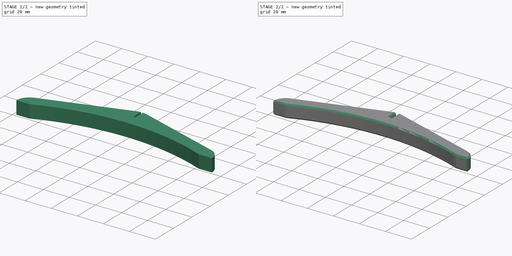
[diagram: build sequence overview — one tinted view per stage of 2, left to right]
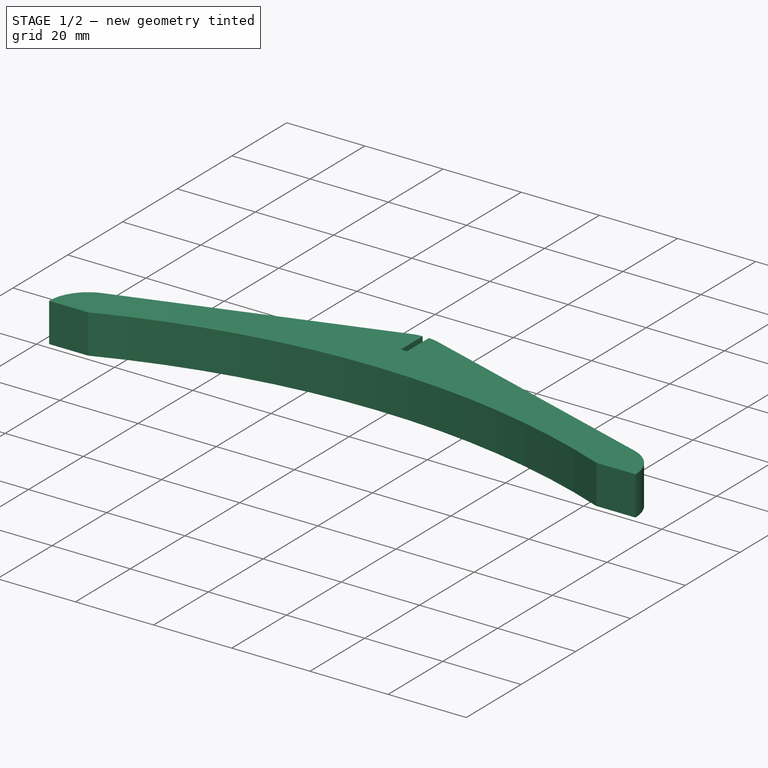
[diagram: stage 1 of 2 — iso view after this stage's code; geometry added in this stage tinted green]
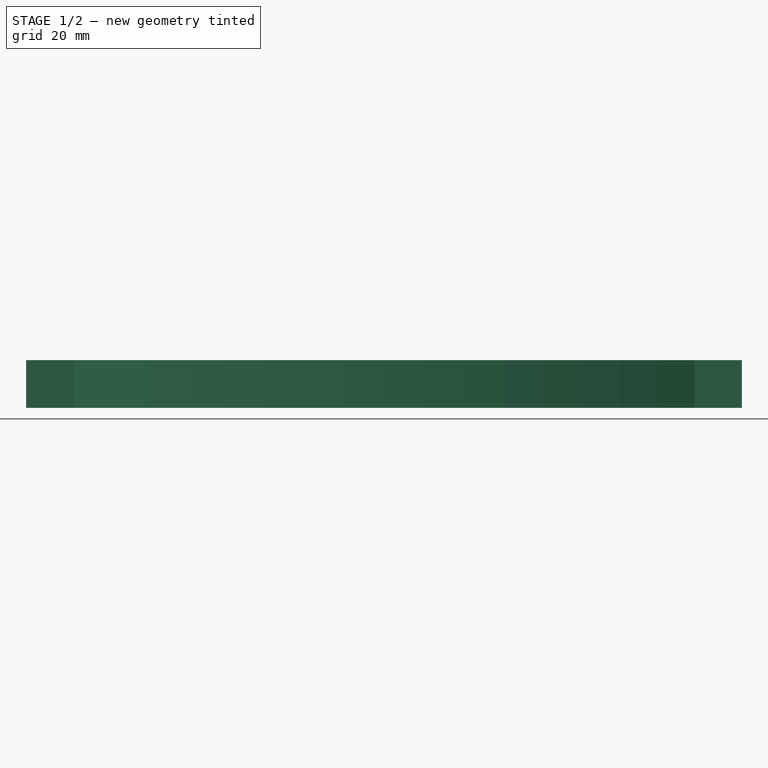
[diagram: stage 1 of 2 — front view after this stage's code; geometry added in this stage tinted green]
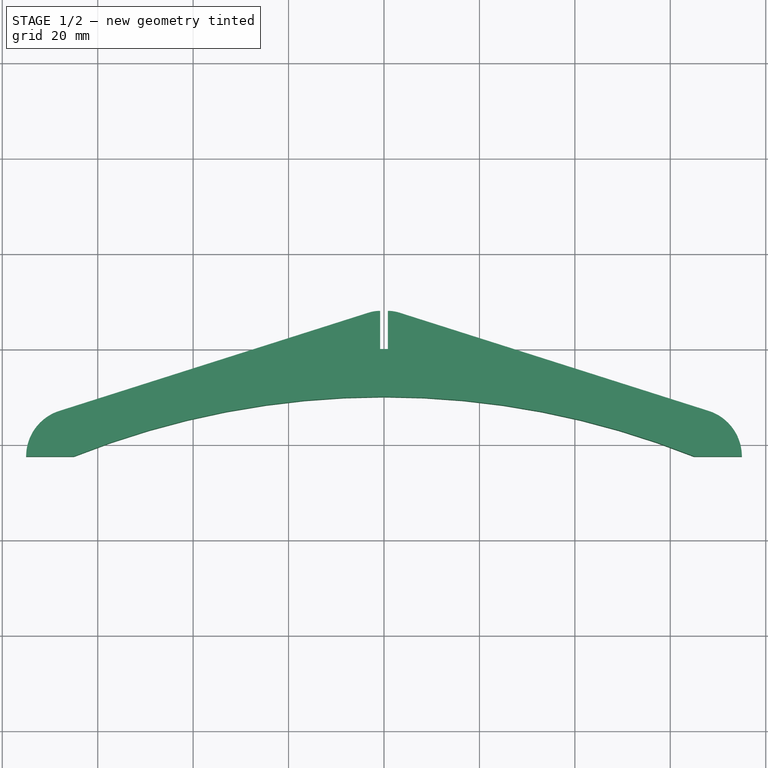
[diagram: stage 1 of 2 — top view after this stage's code; geometry added in this stage tinted green]
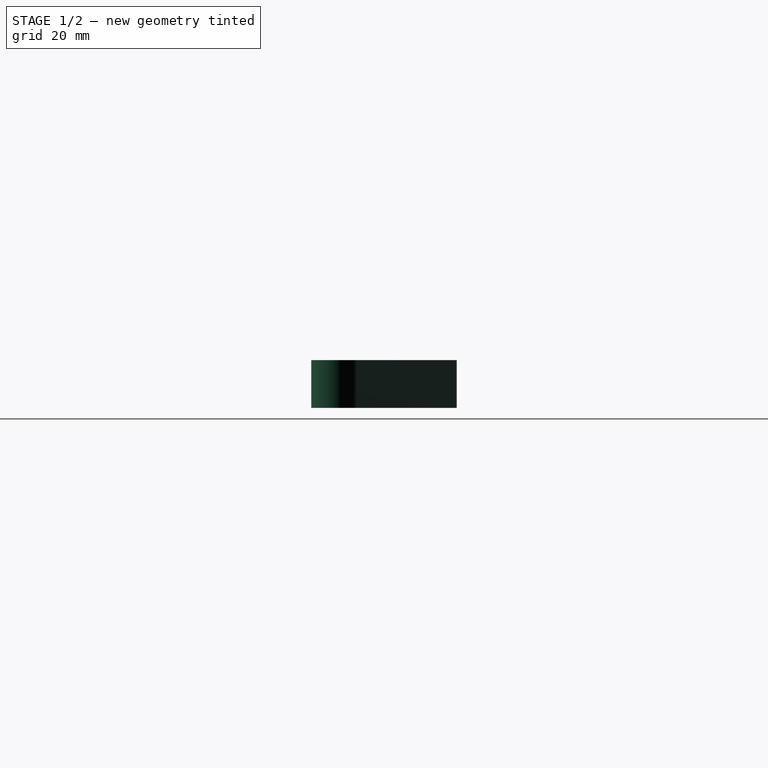
[diagram: stage 1 of 2 — right view after this stage's code; geometry added in this stage tinted green]
FCSTD DOCUMENT  (FreeCAD 0.21R33668 +26 (Git))
Label: Stand
License: All rights reserved
LicenseURL: http://en.wikipedia.org/wiki/All_rights_reserved
objects: Sketcher::SketchObject×1, PartDesign::Pad×1, PartDesign::Chamfer×1, PartDesign::Body×1
note: 6 computed .brp shape members not serialized (recipe doc carries the construction recipe); baked Part::Feature solids carry a one-line shape summary decoded from their .brp

FEATURE [Sketcher::SketchObject] Sketch
  FullyConstrained = true
  MapMode = 5
  Support = -> [XY_Plane]
  sketch-geometry (14):
    g0: LineSegment StartX=-0.8 StartY=8 StartZ=0 EndX=-0.8 EndY=0 EndZ=0
    g1: LineSegment StartX=0.8 StartY=8 StartZ=0 EndX=0.8 EndY=0 EndZ=0
    g2: LineSegment StartX=-0.8 StartY=8 StartZ=0 EndX=0.8 EndY=8 EndZ=0
    g3: ArcOfCircle CenterX=-0.8 CenterY=0 CenterZ=0 NormalX=0 NormalY=0 NormalZ=1 AngleXU=0 Radius=8 StartAngle=1.5708 EndAngle=1.87848
    g4: ArcOfCircle CenterX=0.8 CenterY=0 CenterZ=0 NormalX=0 NormalY=0 NormalZ=1 AngleXU=0 Radius=8 StartAngle=1.26311 EndAngle=1.5708
    g5: LineSegment StartX=-3.22284 StartY=7.62429 StartZ=0 EndX=-68.0286 EndY=-12.9696 EndZ=0
    g6: LineSegment StartX=3.22284 StartY=7.62429 StartZ=0 EndX=68.0286 EndY=-12.9696 EndZ=0
    g7: ArcOfCircle CenterX=-65 CenterY=-22.5 CenterZ=0 NormalX=0 NormalY=0 NormalZ=1 AngleXU=0 Radius=10 StartAngle=1.87848 EndAngle=3.14159
    g8: ArcOfCircle CenterX=65 CenterY=-22.5 CenterZ=0 NormalX=0 NormalY=0 NormalZ=1 AngleXU=0 Radius=10 StartAngle=1e-16 EndAngle=1.26311
    g9: LineSegment StartX=-0.8 StartY=0 StartZ=0 EndX=0.8 EndY=0 EndZ=0
    g10: LineSegment StartX=-75 StartY=-22.5 StartZ=0 EndX=-65 EndY=-22.5 EndZ=0
    g11: LineSegment StartX=75 StartY=-22.5 StartZ=0 EndX=65 EndY=-22.5 EndZ=0
    g12: ArcOfCircle CenterX=1.66e-14 CenterY=-185.25 CenterZ=0 NormalX=0 NormalY=0 NormalZ=1 AngleXU=0 Radius=175.25 StartAngle=1.19082 EndAngle=1.95077
    g13: LineSegment StartX=0 StartY=0 StartZ=0 EndX=0 EndY=-10 EndZ=0
  constraints (36):
    c: PointOnObject(g0,g-1)
    c: Vertical(g0)
    c: PointOnObject(g1,g-1)
    c: Vertical(g1)
    c: DistanceY(g0,g0) = 8
    c: Coincident(g2,g0)
    c: Coincident(g2,g1)
    c: DistanceX(g2,g2) = 1.6
    c: Symmetric(g0,g1,g-2)
    c: Coincident(g3,g0)
    c: Coincident(g3,g0)
    c: Coincident(g4,g1)
    c: Coincident(g4,g1)
    c: Tangent(g6,g4) = 1.5708
    c: Tangent(g5,g3) = -1.5708
    c: Equal(g5,g6)
    c: Tangent(g8,g6) = 1.5708
    c: Tangent(g7,g5) = -1.5708
    c: Symmetric(g7,g8,g-2)
    c: Coincident(g9,g0)
    c: Coincident(g9,g1)
    c: Coincident(g10,g7)
    c: Horizontal(g10)
    c: Coincident(g11,g8)
    c: Horizontal(g11)
    c: DistanceX(g10,g10) = 10
    c: Coincident(g12,g10)
    c: Coincident(g12,g11)
    c: Coincident(g13,g-1)
    c: Vertical(g13)
    c: Coincident(g8,g11)
    c: Coincident(g7,g10)
    c: PointOnObject(g13,g12)
    c: DistanceY(g13,g13) = 10
    c: DistanceX(g7,g8) = 150
    c: DistanceY(g7,g-1) = 22.5
FEATURE [PartDesign::Pad] Pad
  Direction = (0,0,1)
  Length = 10
  Length2 = 10
  Profile = -> Sketch
  ReferenceAxis = -> Sketch [N_Axis]
  Type = 0
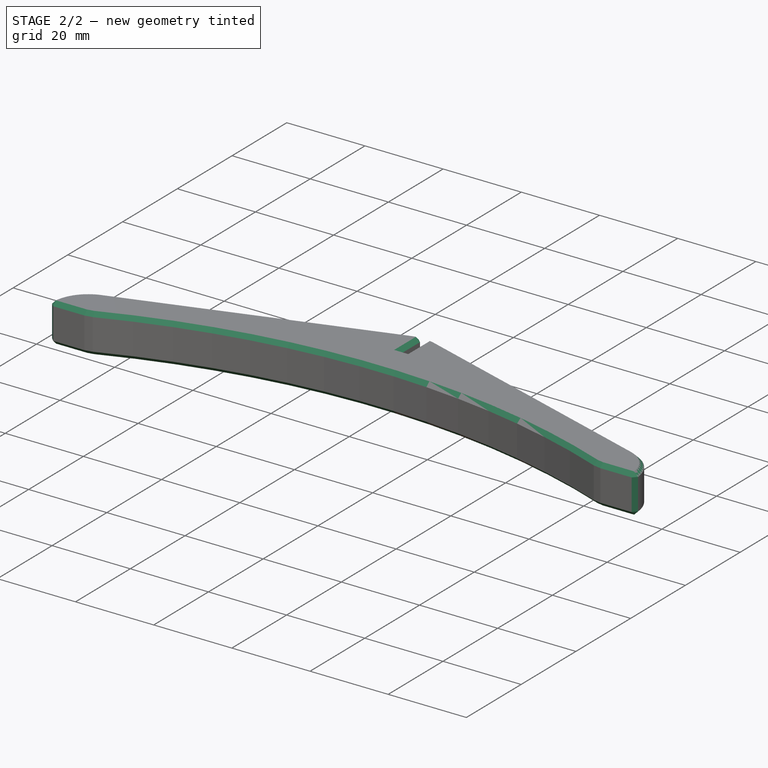
[diagram: stage 2 of 2 — iso view after this stage's code; geometry added in this stage tinted green]
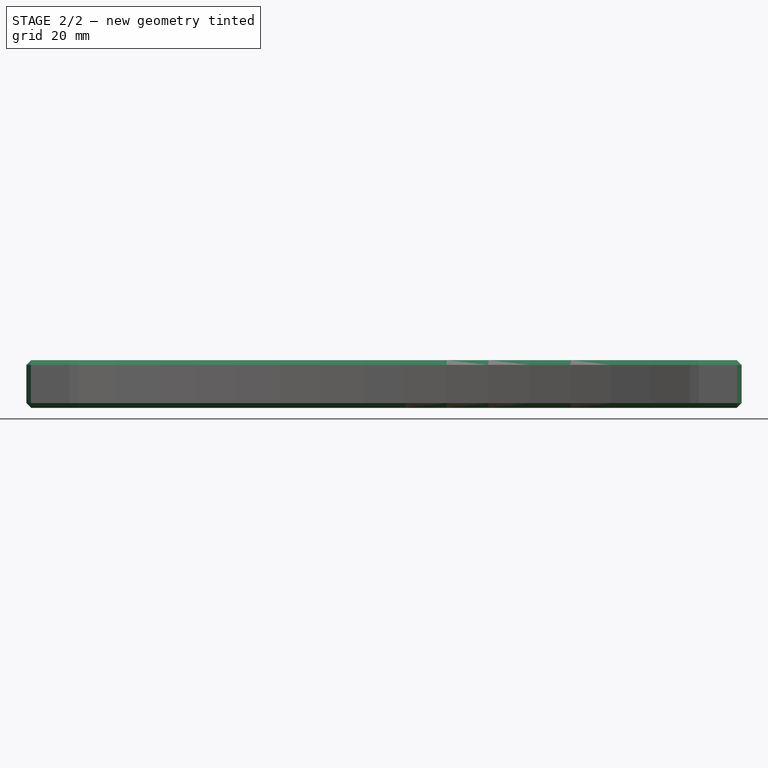
[diagram: stage 2 of 2 — front view after this stage's code; geometry added in this stage tinted green]
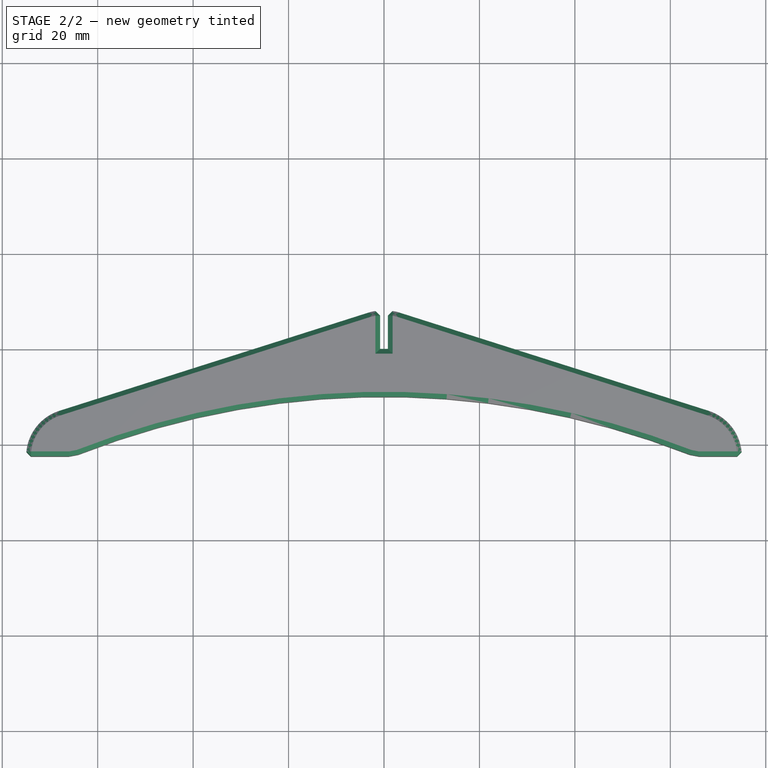
[diagram: stage 2 of 2 — top view after this stage's code; geometry added in this stage tinted green]
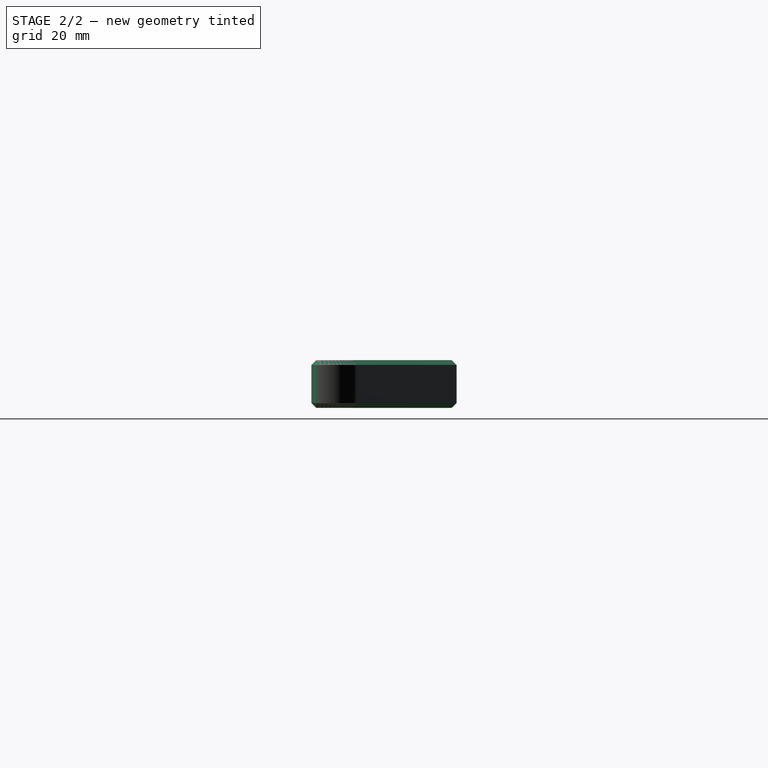
[diagram: stage 2 of 2 — right view after this stage's code; geometry added in this stage tinted green]
FEATURE [PartDesign::Chamfer] Chamfer
  Angle = 45
  Base = -> Pad [Face14,Face13,Edge1,Edge11,Edge29,Edge26,Edge23,Edge20]
  BaseFeature = -> Pad
  ChamferType = 0
  FlipDirection = false
  Size = 1
  Size2 = 1
  SupportTransform = false
  UseAllEdges = false
FEATURE [PartDesign::Body] Body
  Group = -> [Sketch,Pad,Chamfer]
  Origin = -> Origin
  Tip = -> Chamfer
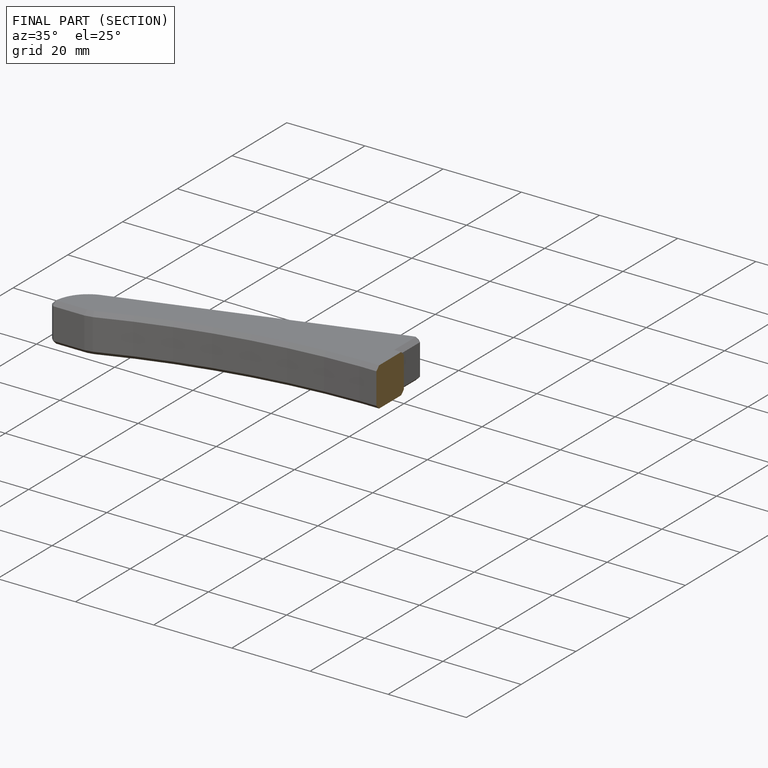
[diagram: finished part — half-section view (interior)]
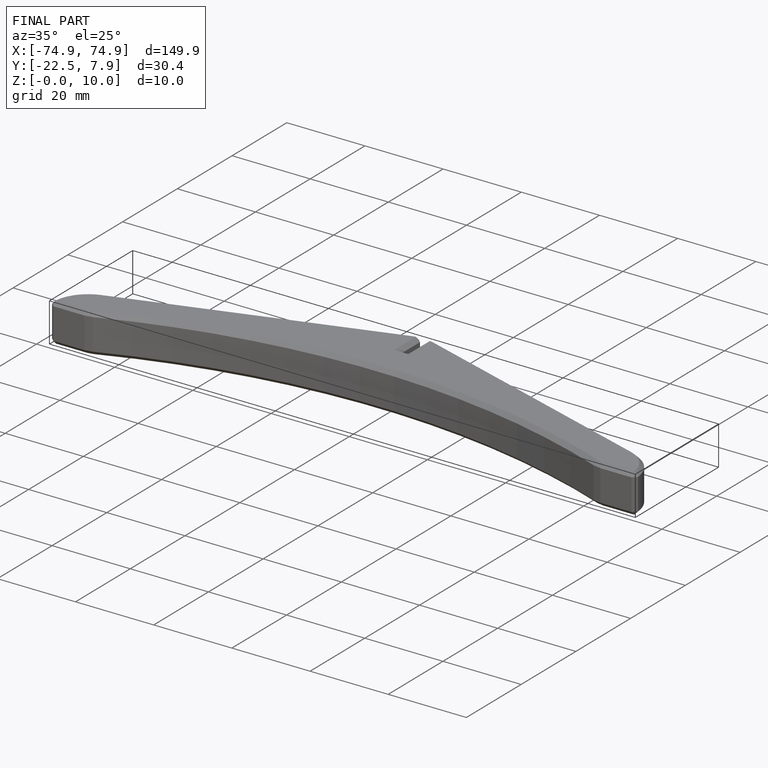
[diagram: finished part — iso view with bounding-box wireframe]
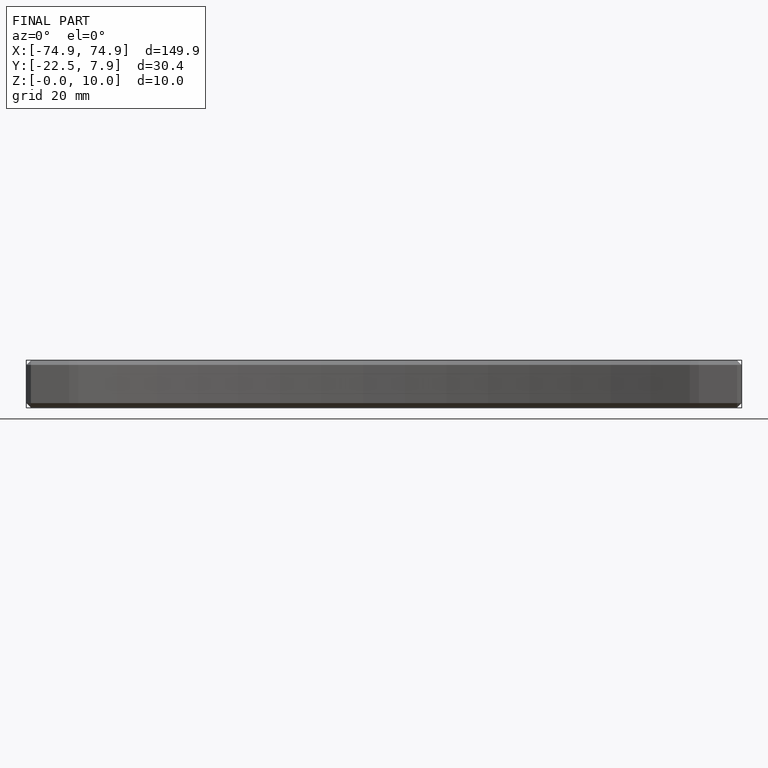
[diagram: finished part — front view with bounding-box wireframe]
